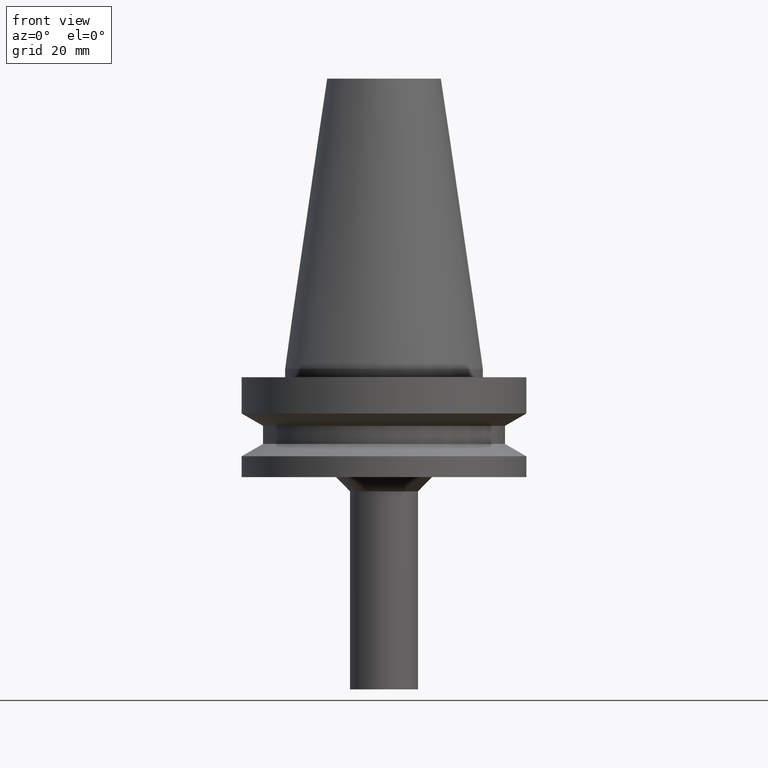
[diagram: clean part render]
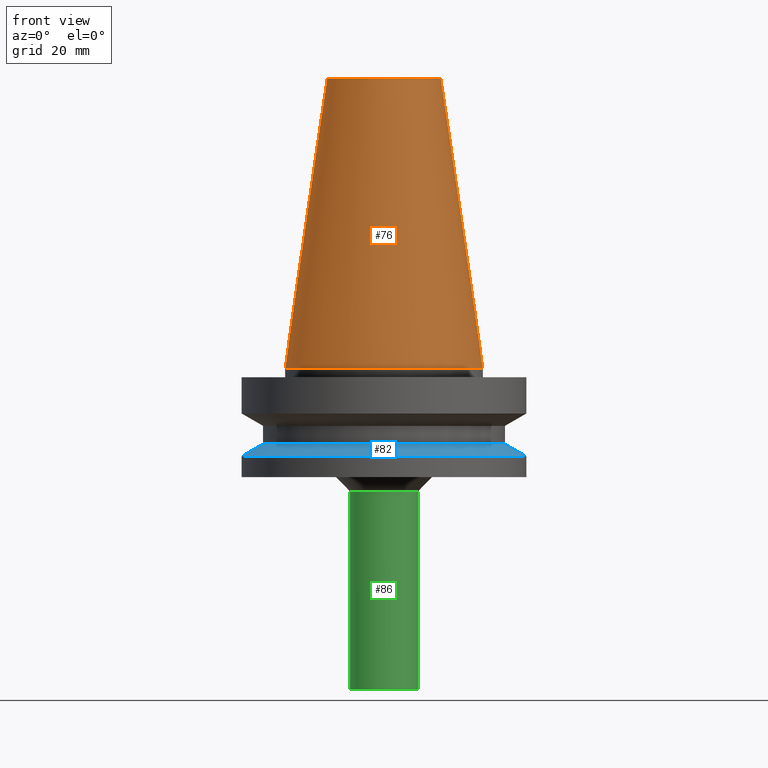
[diagram: same view with three faces highlighted in distinct colors, each labeled with its STEP entity id]
A machine part, front view with three faces highlighted in distinct colors.
Their STEP definitions:

[orange] entity #76 — the highlighted conical surface has half-angle 8.297 deg.
#76=ADVANCED_FACE('',(#91,#92),#93,.T.);
#91=FACE_BOUND('',#128,.T.);
#92=FACE_BOUND('',#129,.T.);
#93=CONICAL_SURFACE('',#130,27.5020833325942,0.144812498253157);
#128=EDGE_LOOP('',(#167));
#129=EDGE_LOOP('',(#168));
#130=AXIS2_PLACEMENT_3D('',#169,#170,#171);
#167=ORIENTED_EDGE('',*,*,#227,.F.);
#168=ORIENTED_EDGE('',*,*,#226,.T.);
#169=CARTESIAN_POINT('',(-3.11672610383001E-015,-6.23345220766003E-015,50.9));
#170=DIRECTION('',(6.12323399573677E-017,1.22464679914678E-016,-1.0));
#171=DIRECTION('',(-1.232595164408E-032,1.0,1.22464679914678E-016));
#226=EDGE_CURVE('',#238,#238,#239,.T.);
#227=EDGE_CURVE('',#240,#240,#241,.T.);
#238=VERTEX_POINT('',#262);
#239=CIRCLE('',#263,20.0791666651885);
#240=VERTEX_POINT('',#264);
#241=CIRCLE('',#265,34.925);
#262=CARTESIAN_POINT('',(-6.23345220766003E-015,20.0791666651884,101.8));
#263=AXIS2_PLACEMENT_3D('',#286,#287,#288);
#264=CARTESIAN_POINT('',(-4.30483861169435E-031,34.925,4.27707894602213E-015));
#265=AXIS2_PLACEMENT_3D('',#289,#290,#291);
#286=CARTESIAN_POINT('',(-6.23345220766003E-015,-1.24669044153201E-014,101.8));
#287=DIRECTION('',(6.12323399573677E-017,1.22464679914793E-016,-1.0));
#288=DIRECTION('',(-1.23259516440811E-032,1.0,1.22464679914793E-016));
#289=CARTESIAN_POINT('',(0.0,0.0,0.0));
#290=DIRECTION('',(6.12323399573677E-017,1.22464679914705E-016,-1.0));
#291=DIRECTION('',(-1.23259516440742E-032,1.0,1.22464679914705E-016));

[blue] entity #82 — the highlighted conical surface has half-angle 60 deg.
#82=ADVANCED_FACE('',(#109,#110),#111,.T.);
#109=FACE_BOUND('',#146,.T.);
#110=FACE_BOUND('',#147,.T.);
#111=CONICAL_SURFACE('',#148,46.25,1.04719755108882);
#146=EDGE_LOOP('',(#197));
#147=EDGE_LOOP('',(#198));
#148=AXIS2_PLACEMENT_3D('',#199,#200,#201);
#197=ORIENTED_EDGE('',*,*,#233,.F.);
#198=ORIENTED_EDGE('',*,*,#232,.T.);
#199=CARTESIAN_POINT('',(1.74726093181758E-015,3.49452186363515E-015,-28.53493649));
#200=DIRECTION('',(6.12323399573676E-017,1.22464679914679E-016,-1.0));
#201=DIRECTION('',(-1.23259516440783E-032,1.0,1.22464679914679E-016));
#232=EDGE_CURVE('',#250,#250,#251,.T.);
#233=EDGE_CURVE('',#252,#252,#253,.T.);
#250=VERTEX_POINT('',#274);
#251=CIRCLE('',#275,42.5);
#252=VERTEX_POINT('',#276);
#253=CIRCLE('',#277,50.0);
#274=CARTESIAN_POINT('',(1.61468902694396E-015,42.5,-26.36987298));
#275=AXIS2_PLACEMENT_3D('',#304,#305,#306);
#276=CARTESIAN_POINT('',(1.87983283669119E-015,50.0,-30.7));
#277=AXIS2_PLACEMENT_3D('',#307,#308,#309);
#304=CARTESIAN_POINT('',(1.61468902694396E-015,3.22937805388793E-015,-26.36987298));
#305=DIRECTION('',(6.12323399573677E-017,1.22464679914687E-016,-1.0));
#306=DIRECTION('',(-1.23259516440783E-032,1.0,1.22464679914687E-016));
#307=CARTESIAN_POINT('',(1.87983283669119E-015,3.75966567338237E-015,-30.7));
#308=DIRECTION('',(6.12323399573677E-017,1.22464679914672E-016,-1.0));
#309=DIRECTION('',(-1.23259516440783E-032,1.0,1.22464679914672E-016));

[green] entity #86 — the highlighted cylindrical surface (bore or boss wall) has radius 12 mm, axis along (-0, -0, 1).
#86=ADVANCED_FACE('',(#121,#122),#123,.T.);
#121=FACE_BOUND('',#158,.T.);
#122=FACE_BOUND('',#159,.T.);
#123=CYLINDRICAL_SURFACE('',#160,12.0);
#158=EDGE_LOOP('',(#217));
#159=EDGE_LOOP('',(#218));
#160=AXIS2_PLACEMENT_3D('',#219,#220,#221);
#217=ORIENTED_EDGE('',*,*,#237,.F.);
#218=ORIENTED_EDGE('',*,*,#236,.T.);
#219=CARTESIAN_POINT('',(4.76081443168534E-015,9.52162886337067E-015,-77.75));
#220=DIRECTION('',(-6.12323399573677E-017,-1.22464679914693E-016,1.0));
#221=DIRECTION('',(-1.23259516440783E-032,1.0,1.22464679914693E-016));
#236=EDGE_CURVE('',#258,#258,#259,.T.);
#237=EDGE_CURVE('',#260,#260,#261,.T.);
#258=VERTEX_POINT('',#282);
#259=CIRCLE('',#283,12.0);
#260=VERTEX_POINT('',#284);
#261=CIRCLE('',#285,12.0);
#282=CARTESIAN_POINT('',(2.63299061816681E-015,12.0,-43.0));
#283=AXIS2_PLACEMENT_3D('',#316,#317,#318);
#284=CARTESIAN_POINT('',(6.88863824520386E-015,12.0,-112.5));
#285=AXIS2_PLACEMENT_3D('',#319,#320,#321);
#316=CARTESIAN_POINT('',(2.63299061816681E-015,5.26598123633362E-015,-43.0));
#317=DIRECTION('',(6.12323399573677E-017,1.22464679914693E-016,-1.0));
#318=DIRECTION('',(-1.23259516440783E-032,1.0,1.22464679914693E-016));
#319=CARTESIAN_POINT('',(6.88863824520386E-015,1.37772764904077E-014,-112.5));
#320=DIRECTION('',(6.12323399573677E-017,1.22464679914693E-016,-1.0));
#321=DIRECTION('',(-1.23259516440783E-032,1.0,1.22464679914693E-016));